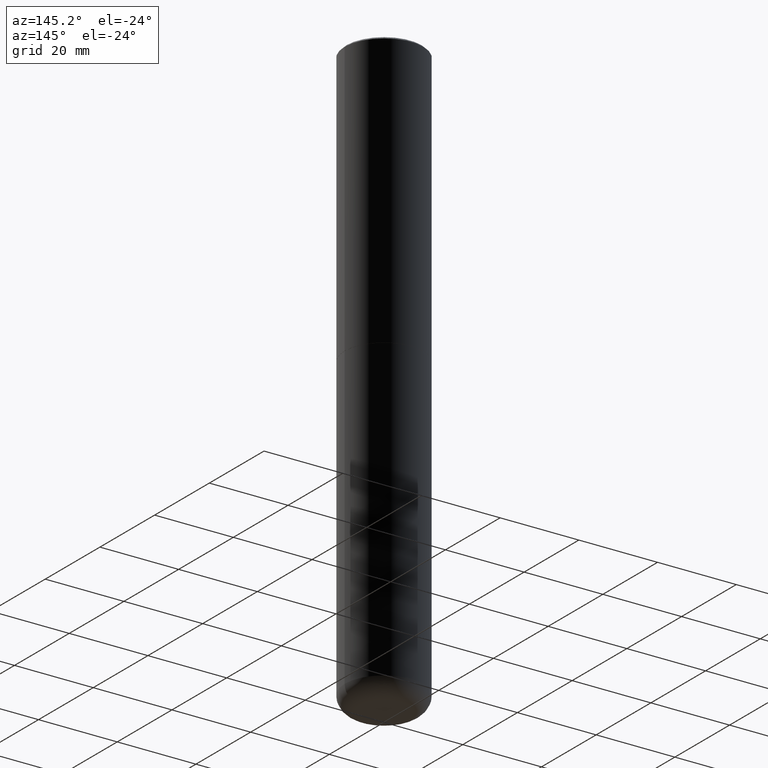
[diagram: clean part render]
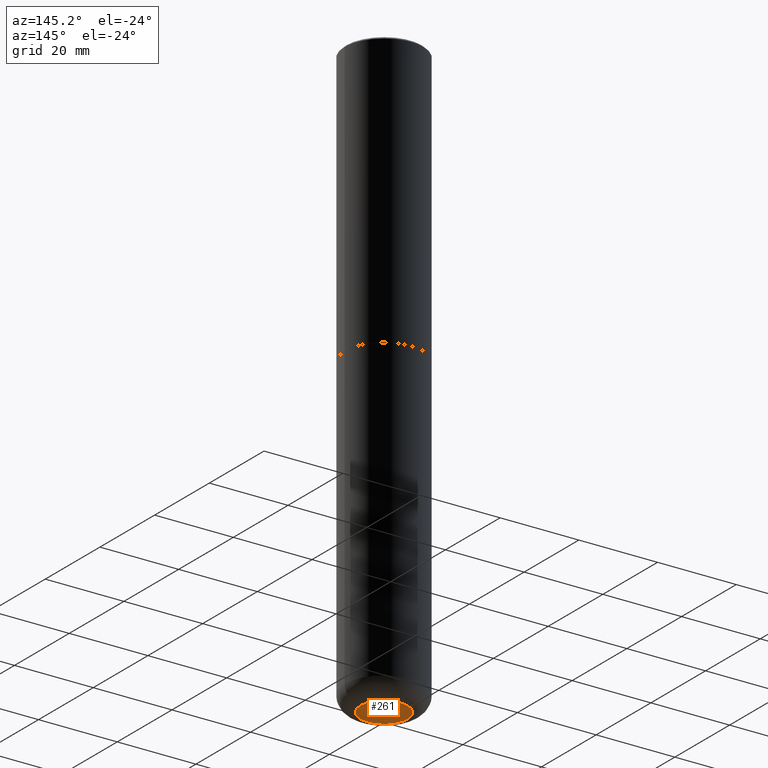
[diagram: same view with one face highlighted and labeled with its STEP entity id]
A machine part, auxiliary view. The second image highlights one B-rep face of the part: STEP entity #261.
In plain terms, the highlighted planar face has unit normal (0, -0, -1).
Its self-contained STEP definition (entity closure, byte-faithful):
#20 = AXIS2_PLACEMENT_3D ( 'NONE', #184, #154, #222 ) ;
#58 = EDGE_CURVE ( 'NONE', #347, #120, #186, .T. ) ;
#92 = AXIS2_PLACEMENT_3D ( 'NONE', #267, #107, #400 ) ;
#107 = DIRECTION ( 'NONE',  ( -2.445468806185136597E-29, 3.491481338843145583E-15, 1.000000000000000000 ) ) ;
#118 = EDGE_CURVE ( 'NONE', #120, #347, #196, .T. ) ;
#120 = VERTEX_POINT ( 'NONE', #327 ) ;
#154 = DIRECTION ( 'NONE',  ( 2.438088387897960049E-29, -3.491481338843145188E-15, -1.000000000000000000 ) ) ;
#160 = AXIS2_PLACEMENT_3D ( 'NONE', #202, #227, #226 ) ;
#165 = ORIENTED_EDGE ( 'NONE', *, *, #58, .F. ) ;
#184 = CARTESIAN_POINT ( 'NONE',  ( -4.636291820505651081E-29, -4.793973614828979429E-14, -5.905500000000000860 ) ) ;
#185 = PLANE ( 'NONE',  #20 ) ;
#186 = CIRCLE ( 'NONE', #160, 0.2362000000000000766 ) ;
#194 = CARTESIAN_POINT ( 'NONE',  ( -0.2362000000000000766, -1.810613454482786325E-14, -5.905500000000000860 ) ) ;
#196 = CIRCLE ( 'NONE', #92, 0.2362000000000000766 ) ;
#202 = CARTESIAN_POINT ( 'NONE',  ( 1.444171603492632494E-28, -2.061894304653819828E-14, -5.905500000000000860 ) ) ;
#222 = DIRECTION ( 'NONE',  ( -1.000000000000000000, 6.982962677686265922E-15, -4.876176775795935793E-29 ) ) ;
#226 = DIRECTION ( 'NONE',  ( 1.000000000000000000, -6.982962677686270655E-15, 0.000000000000000000 ) ) ;
#227 = DIRECTION ( 'NONE',  ( -2.445468806185136597E-29, 3.491481338843145583E-15, 1.000000000000000000 ) ) ;
#261 = ADVANCED_FACE ( 'NONE', ( #280 ), #185, .T. ) ;
#267 = CARTESIAN_POINT ( 'NONE',  ( 1.444171603492632494E-28, -2.061894304653819828E-14, -5.905500000000000860 ) ) ;
#280 = FACE_OUTER_BOUND ( 'NONE', #335, .T. ) ;
#306 = ORIENTED_EDGE ( 'NONE', *, *, #118, .F. ) ;
#327 = CARTESIAN_POINT ( 'NONE',  ( 0.2362000000000000766, -2.226831883100769480E-14, -5.905500000000000860 ) ) ;
#335 = EDGE_LOOP ( 'NONE', ( #306, #165 ) ) ;
#347 = VERTEX_POINT ( 'NONE', #194 ) ;
#400 = DIRECTION ( 'NONE',  ( 1.000000000000000000, -6.982962677686270655E-15, 0.000000000000000000 ) ) ;